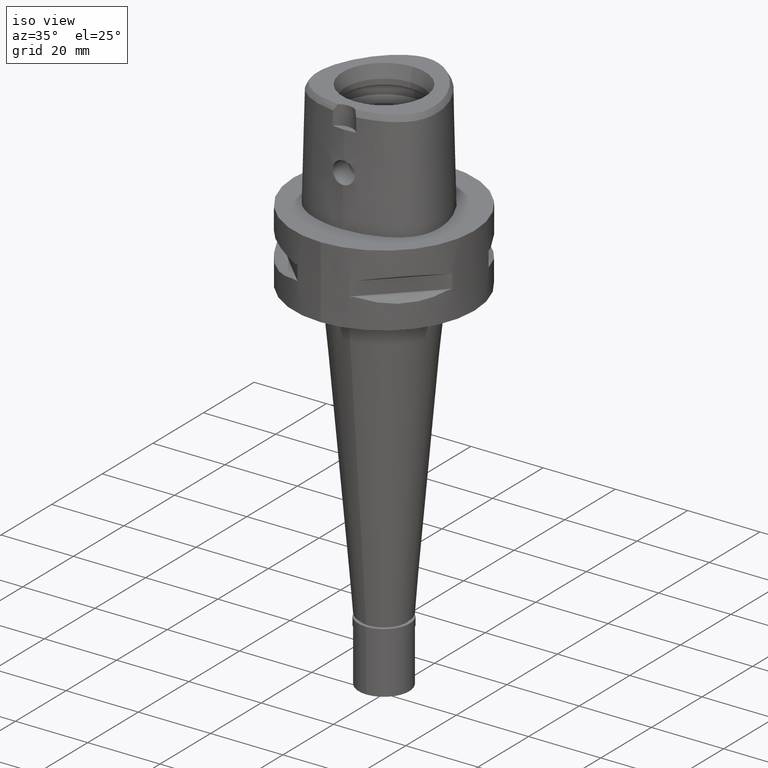
[diagram: clean part render]
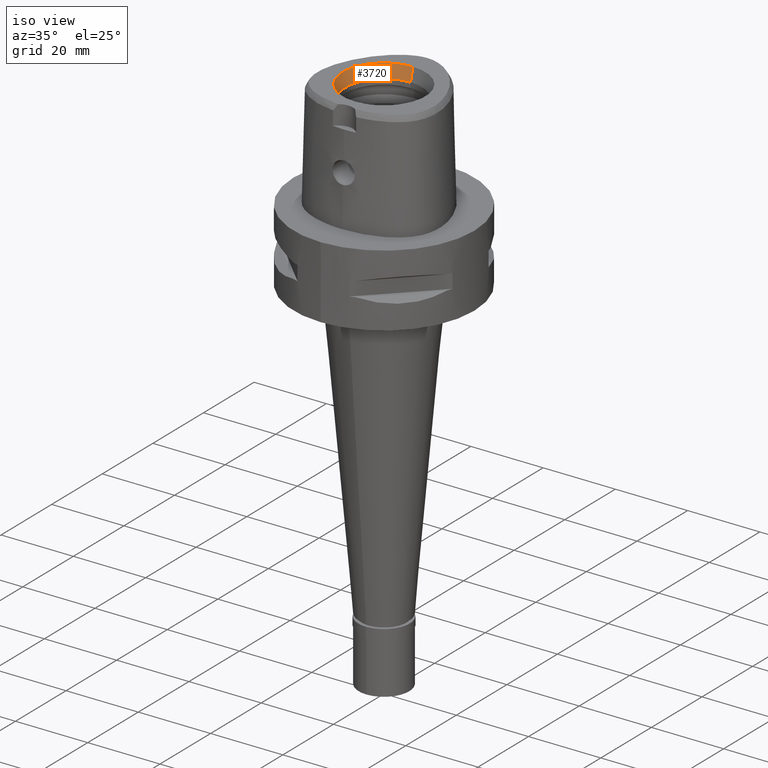
[diagram: same view with one face highlighted and labeled with its STEP entity id]
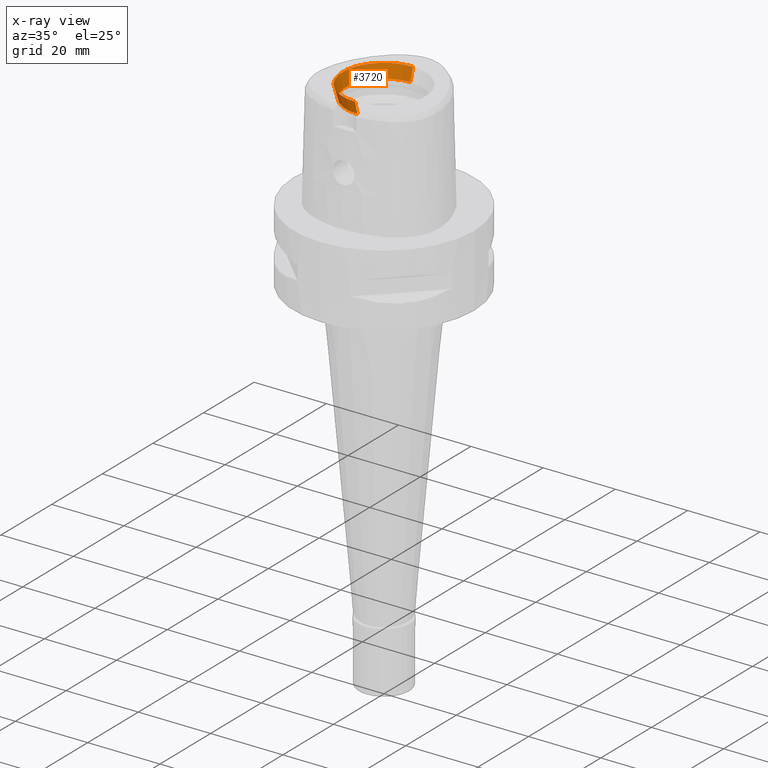
[diagram: x-ray of the same camera — body ghosted, the highlighted face saturated]
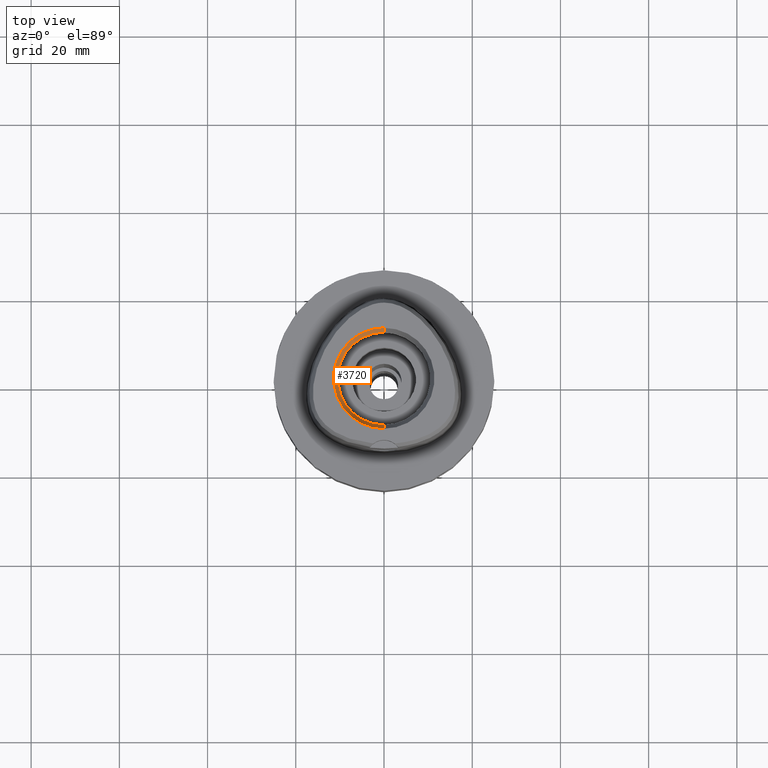
[diagram: same view with one face highlighted and labeled with its STEP entity id]
A machine part, iso view. The second image highlights one B-rep face of the part: STEP entity #3720.
The next image is the same camera in x-ray: the body ghosted, the highlighted face saturated — about 0% of this face is hidden behind the body in this view.
A second angle (top view) of the same face is appended — the face is thin or edge-on in the first view.
In plain terms, the highlighted conical surface has half-angle 15 deg.
Its self-contained STEP definition (entity closure, byte-faithful):
#152 = CARTESIAN_POINT ( 'NONE',  ( 0.0000000000000000000, 1.570614979474999723E-14, 28.25044580763999846 ) ) ;
#422 = FACE_OUTER_BOUND ( 'NONE', #2519, .T. ) ;
#651 = LINE ( 'NONE', #3565, #1537 ) ;
#750 = VERTEX_POINT ( 'NONE', #3920 ) ;
#904 = VERTEX_POINT ( 'NONE', #2455 ) ;
#907 = EDGE_CURVE ( 'NONE', #1931, #904, #2256, .T. ) ;
#1150 = ORIENTED_EDGE ( 'NONE', *, *, #2937, .T. ) ;
#1204 = CARTESIAN_POINT ( 'NONE',  ( 0.0000000000000000000, 1.570614979474999723E-14, 30.00000000000000000 ) ) ;
#1239 = ORIENTED_EDGE ( 'NONE', *, *, #4010, .F. ) ;
#1318 = ORIENTED_EDGE ( 'NONE', *, *, #4123, .T. ) ;
#1384 = AXIS2_PLACEMENT_3D ( 'NONE', #152, #1920, #3391 ) ;
#1537 = VECTOR ( 'NONE', #2821, 999.9999999999998863 ) ;
#1703 = LINE ( 'NONE', #3185, #3158 ) ;
#1920 = DIRECTION ( 'NONE',  ( 0.0000000000000000000, 0.0000000000000000000, 1.000000000000000000 ) ) ;
#1931 = VERTEX_POINT ( 'NONE', #2922 ) ;
#2065 = DIRECTION ( 'NONE',  ( 0.0000000000000000000, 0.0000000000000000000, 1.000000000000000000 ) ) ;
#2256 = CIRCLE ( 'NONE', #3403, 10.50000000000000000 ) ;
#2455 = CARTESIAN_POINT ( 'NONE',  ( 0.0000000000000000000, -10.50000000000000000, 26.50089161528000048 ) ) ;
#2492 = CARTESIAN_POINT ( 'NONE',  ( 0.0000000000000000000, 11.43758326592000074, 30.00000000000000000 ) ) ;
#2519 = EDGE_LOOP ( 'NONE', ( #1239, #3292, #1318, #1150 ) ) ;
#2615 = DIRECTION ( 'NONE',  ( 0.0000000000000000000, 1.000000000000000000, 0.0000000000000000000 ) ) ;
#2821 = DIRECTION ( 'NONE',  ( 0.0000000000000000000, 0.2588190451022134297, 0.9659258262891506908 ) ) ;
#2922 = CARTESIAN_POINT ( 'NONE',  ( 0.0000000000000000000, 10.50000000000000000, 26.50089161528000048 ) ) ;
#2937 = EDGE_CURVE ( 'NONE', #3541, #750, #4720, .T. ) ;
#2975 = DIRECTION ( 'NONE',  ( 0.0000000000000000000, 0.0000000000000000000, 1.000000000000000000 ) ) ;
#3158 = VECTOR ( 'NONE', #4321, 999.9999999999998863 ) ;
#3175 = CARTESIAN_POINT ( 'NONE',  ( 0.0000000000000000000, 1.570614979474999723E-14, 26.50089161528000048 ) ) ;
#3185 = CARTESIAN_POINT ( 'NONE',  ( 0.0000000000000000000, -10.50000000000000000, 26.50089161528000048 ) ) ;
#3283 = AXIS2_PLACEMENT_3D ( 'NONE', #1204, #2975, #2615 ) ;
#3292 = ORIENTED_EDGE ( 'NONE', *, *, #907, .F. ) ;
#3391 = DIRECTION ( 'NONE',  ( 0.0000000000000000000, 1.000000000000000000, 0.0000000000000000000 ) ) ;
#3403 = AXIS2_PLACEMENT_3D ( 'NONE', #3175, #2065, #4270 ) ;
#3541 = VERTEX_POINT ( 'NONE', #2492 ) ;
#3565 = CARTESIAN_POINT ( 'NONE',  ( 0.0000000000000000000, 10.50000000000000000, 26.50089161528000048 ) ) ;
#3720 = ADVANCED_FACE ( 'NONE', ( #422 ), #4454, .F. ) ;
#3920 = CARTESIAN_POINT ( 'NONE',  ( 0.0000000000000000000, -11.43758326592000074, 30.00000000000000000 ) ) ;
#4010 = EDGE_CURVE ( 'NONE', #904, #750, #1703, .T. ) ;
#4123 = EDGE_CURVE ( 'NONE', #1931, #3541, #651, .T. ) ;
#4270 = DIRECTION ( 'NONE',  ( 0.0000000000000000000, 1.000000000000000000, 0.0000000000000000000 ) ) ;
#4321 = DIRECTION ( 'NONE',  ( 0.0000000000000000000, -0.2588190451022134297, 0.9659258262891506908 ) ) ;
#4454 = CONICAL_SURFACE ( 'NONE', #1384, 10.96879163296000037, 0.2617993877991000029 ) ;
#4720 = CIRCLE ( 'NONE', #3283, 11.43758326592000074 ) ;